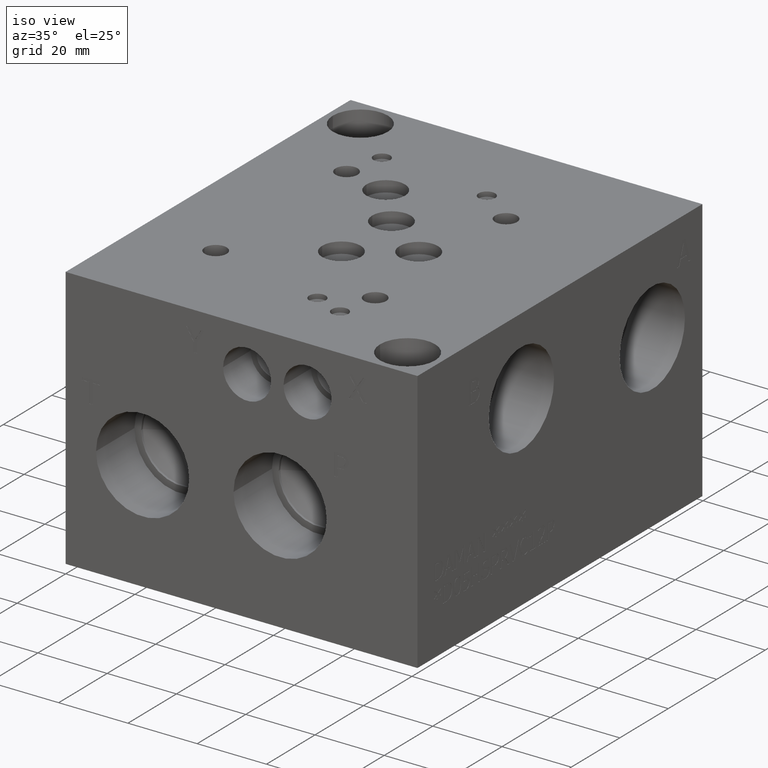
[diagram: clean part render]
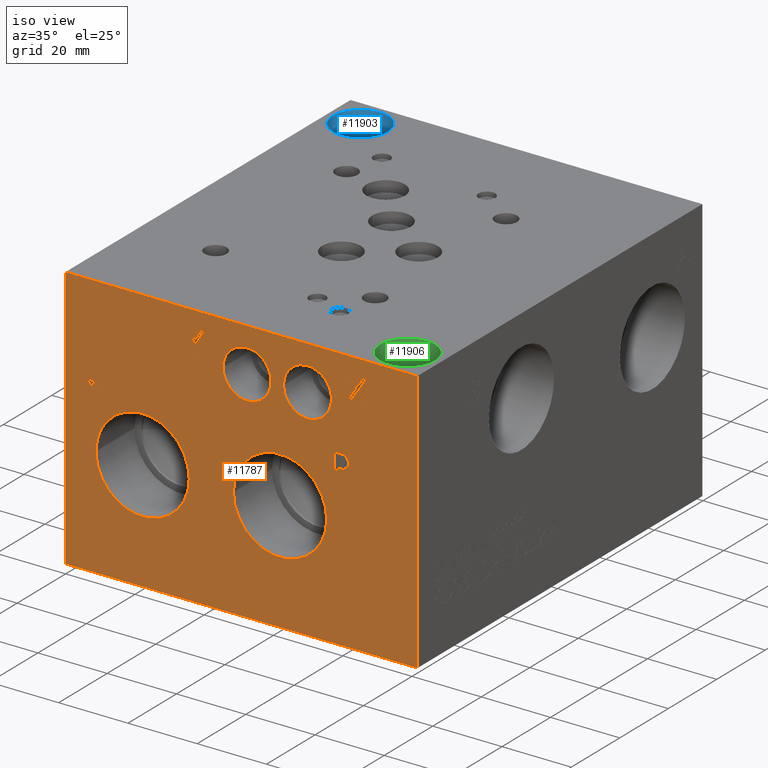
[diagram: same view with three faces highlighted in distinct colors, each labeled with its STEP entity id]
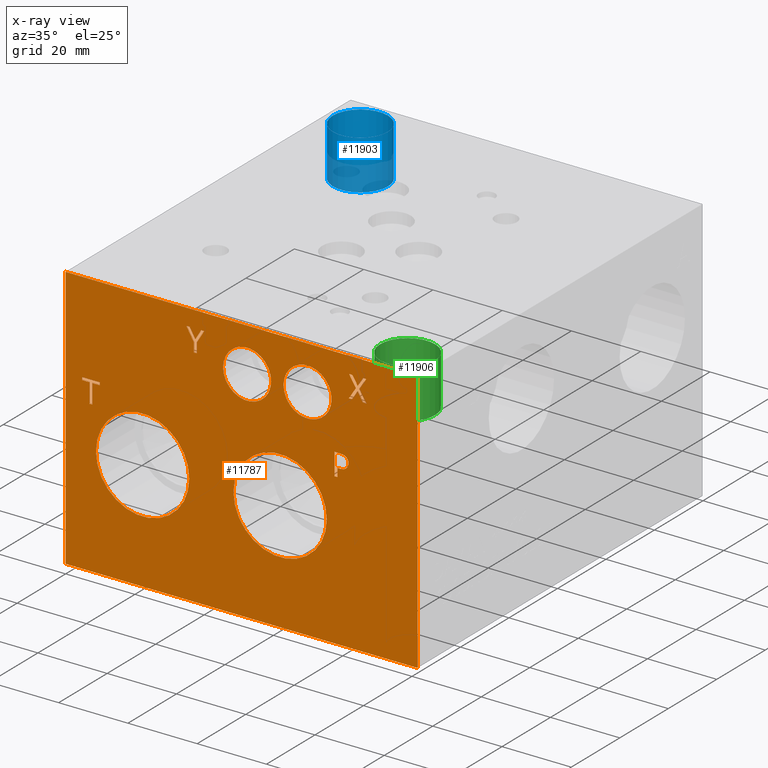
[diagram: x-ray of the same camera — body ghosted, the three highlighted faces saturated]
A machine part, iso view with three faces highlighted in distinct colors.
The next image is the same camera in x-ray (body ghosted, the three faces saturated) — at least one of them is partly hidden behind the body in this view.
Their STEP definitions:

[orange] entity #11787 — the highlighted planar face has unit normal (0, -1, 0).
#101=CIRCLE('',#12277,6.9342);
#102=CIRCLE('',#12278,6.9342);
#103=CIRCLE('',#12279,6.9342);
#104=CIRCLE('',#12280,6.9342);
#105=CIRCLE('',#12281,13.462);
#106=CIRCLE('',#12282,13.462);
#107=CIRCLE('',#12283,13.462);
#108=CIRCLE('',#12284,13.462);
#310=FACE_BOUND('',#1847,.T.);
#311=FACE_BOUND('',#1848,.T.);
#312=FACE_BOUND('',#1849,.T.);
#313=FACE_BOUND('',#1850,.T.);
#314=FACE_BOUND('',#1851,.T.);
#315=FACE_BOUND('',#1852,.T.);
#316=FACE_BOUND('',#1853,.T.);
#317=FACE_BOUND('',#1854,.T.);
#672=PLANE('',#12276);
#1198=FACE_OUTER_BOUND('',#1846,.T.);
#1846=EDGE_LOOP('',(#9910,#9911,#9912,#9913));
#1847=EDGE_LOOP('',(#9914,#9915,#9916,#9917,#9918,#9919,#9920,#9921));
#1848=EDGE_LOOP('',(#9922,#9923));
#1849=EDGE_LOOP('',(#9924,#9925));
#1850=EDGE_LOOP('',(#9926,#9927));
#1851=EDGE_LOOP('',(#9928,#9929));
#1852=EDGE_LOOP('',(#9930,#9931,#9932,#9933,#9934,#9935,#9936,#9937,#9938,
#9939,#9940,#9941));
#1853=EDGE_LOOP('',(#9942,#9943,#9944,#9945,#9946,#9947,#9948,#9949,#9950));
#1854=EDGE_LOOP('',(#9951,#9952,#9953,#9954,#9955,#9956,#9957,#9958,#9959));
#2071=LINE('',#15257,#3255);
#2504=LINE('',#17848,#3688);
#2959=LINE('',#19163,#4143);
#2963=LINE('',#19171,#4147);
#2966=LINE('',#19177,#4150);
#2969=LINE('',#19183,#4153);
#2972=LINE('',#19189,#4156);
#2975=LINE('',#19195,#4159);
#2978=LINE('',#19201,#4162);
#2981=LINE('',#19206,#4165);
#2999=LINE('',#19346,#4183);
#3002=LINE('',#19352,#4186);
#3005=LINE('',#19358,#4189);
#3008=LINE('',#19364,#4192);
#3011=LINE('',#19370,#4195);
#3015=LINE('',#19412,#4199);
#3016=LINE('',#19413,#4200);
#3017=LINE('',#19432,#4201);
#3018=LINE('',#19434,#4202);
#3019=LINE('',#19436,#4203);
#3020=LINE('',#19438,#4204);
#3021=LINE('',#19440,#4205);
#3022=LINE('',#19442,#4206);
#3023=LINE('',#19444,#4207);
#3024=LINE('',#19446,#4208);
#3025=LINE('',#19448,#4209);
#3026=LINE('',#19450,#4210);
#3027=LINE('',#19452,#4211);
#3028=LINE('',#19453,#4212);
#3029=LINE('',#19456,#4213);
#3030=LINE('',#19458,#4214);
#3031=LINE('',#19460,#4215);
#3032=LINE('',#19462,#4216);
#3033=LINE('',#19464,#4217);
#3034=LINE('',#19466,#4218);
#3035=LINE('',#19468,#4219);
#3036=LINE('',#19470,#4220);
#3037=LINE('',#19471,#4221);
#3255=VECTOR('',#12642,10.);
#3688=VECTOR('',#13335,10.);
#4143=VECTOR('',#14130,10.);
#4147=VECTOR('',#14136,10.);
#4150=VECTOR('',#14141,10.);
#4153=VECTOR('',#14146,10.);
#4156=VECTOR('',#14151,10.);
#4159=VECTOR('',#14156,10.);
#4162=VECTOR('',#14161,10.);
#4165=VECTOR('',#14166,10.);
#4183=VECTOR('',#14194,10.);
#4186=VECTOR('',#14199,10.);
#4189=VECTOR('',#14204,10.);
#4192=VECTOR('',#14209,10.);
#4195=VECTOR('',#14214,10.);
#4199=VECTOR('',#14222,10.);
#4200=VECTOR('',#14223,10.);
#4201=VECTOR('',#14240,10.);
#4202=VECTOR('',#14241,10.);
#4203=VECTOR('',#14242,10.);
#4204=VECTOR('',#14243,10.);
#4205=VECTOR('',#14244,10.);
#4206=VECTOR('',#14245,10.);
#4207=VECTOR('',#14246,10.);
#4208=VECTOR('',#14247,10.);
#4209=VECTOR('',#14248,10.);
#4210=VECTOR('',#14249,10.);
#4211=VECTOR('',#14250,10.);
#4212=VECTOR('',#14251,10.);
#4213=VECTOR('',#14252,10.);
#4214=VECTOR('',#14253,10.);
#4215=VECTOR('',#14254,10.);
#4216=VECTOR('',#14255,10.);
#4217=VECTOR('',#14256,10.);
#4218=VECTOR('',#14257,10.);
#4219=VECTOR('',#14258,10.);
#4220=VECTOR('',#14259,10.);
#4221=VECTOR('',#14260,10.);
#4675=B_SPLINE_CURVE_WITH_KNOTS('',2,(#19313,#19314,#19315,#19316),
 .UNSPECIFIED.,.F.,.F.,(3,1,3),(0.,1.,2.),.UNSPECIFIED.);
#4677=B_SPLINE_CURVE_WITH_KNOTS('',2,(#19334,#19335,#19336,#19337),
 .UNSPECIFIED.,.F.,.F.,(3,1,3),(0.,1.,2.),.UNSPECIFIED.);
#4679=B_SPLINE_CURVE_WITH_KNOTS('',2,(#19383,#19384,#19385,#19386),
 .UNSPECIFIED.,.F.,.F.,(3,1,3),(0.,1.,2.),.UNSPECIFIED.);
#4681=B_SPLINE_CURVE_WITH_KNOTS('',2,(#19401,#19402,#19403,#19404),
 .UNSPECIFIED.,.F.,.F.,(3,1,3),(0.,1.,2.),.UNSPECIFIED.);
#4715=VERTEX_POINT('',#15255);
#4716=VERTEX_POINT('',#15256);
#5144=VERTEX_POINT('',#17846);
#5481=VERTEX_POINT('',#19161);
#5482=VERTEX_POINT('',#19162);
#5485=VERTEX_POINT('',#19170);
#5487=VERTEX_POINT('',#19176);
#5489=VERTEX_POINT('',#19182);
#5491=VERTEX_POINT('',#19188);
#5493=VERTEX_POINT('',#19194);
#5495=VERTEX_POINT('',#19200);
#5511=VERTEX_POINT('',#19311);
#5512=VERTEX_POINT('',#19312);
#5515=VERTEX_POINT('',#19333);
#5517=VERTEX_POINT('',#19345);
#5519=VERTEX_POINT('',#19351);
#5521=VERTEX_POINT('',#19357);
#5523=VERTEX_POINT('',#19363);
#5525=VERTEX_POINT('',#19369);
#5527=VERTEX_POINT('',#19382);
#5529=VERTEX_POINT('',#19411);
#5530=VERTEX_POINT('',#19414);
#5531=VERTEX_POINT('',#19415);
#5532=VERTEX_POINT('',#19418);
#5533=VERTEX_POINT('',#19419);
#5534=VERTEX_POINT('',#19422);
#5535=VERTEX_POINT('',#19423);
#5536=VERTEX_POINT('',#19426);
#5537=VERTEX_POINT('',#19427);
#5538=VERTEX_POINT('',#19430);
#5539=VERTEX_POINT('',#19431);
#5540=VERTEX_POINT('',#19433);
#5541=VERTEX_POINT('',#19435);
#5542=VERTEX_POINT('',#19437);
#5543=VERTEX_POINT('',#19439);
#5544=VERTEX_POINT('',#19441);
#5545=VERTEX_POINT('',#19443);
#5546=VERTEX_POINT('',#19445);
#5547=VERTEX_POINT('',#19447);
#5548=VERTEX_POINT('',#19449);
#5549=VERTEX_POINT('',#19451);
#5550=VERTEX_POINT('',#19454);
#5551=VERTEX_POINT('',#19455);
#5552=VERTEX_POINT('',#19457);
#5553=VERTEX_POINT('',#19459);
#5554=VERTEX_POINT('',#19461);
#5555=VERTEX_POINT('',#19463);
#5556=VERTEX_POINT('',#19465);
#5557=VERTEX_POINT('',#19467);
#5558=VERTEX_POINT('',#19469);
#5850=EDGE_CURVE('',#4715,#4716,#2071,.T.);
#6489=EDGE_CURVE('',#4716,#5144,#2504,.T.);
#6992=EDGE_CURVE('',#5481,#5482,#2959,.T.);
#6996=EDGE_CURVE('',#5485,#5481,#2963,.T.);
#6999=EDGE_CURVE('',#5487,#5485,#2966,.T.);
#7002=EDGE_CURVE('',#5489,#5487,#2969,.T.);
#7005=EDGE_CURVE('',#5491,#5489,#2972,.T.);
#7008=EDGE_CURVE('',#5493,#5491,#2975,.T.);
#7011=EDGE_CURVE('',#5495,#5493,#2978,.T.);
#7014=EDGE_CURVE('',#5482,#5495,#2981,.T.);
#7037=EDGE_CURVE('',#5511,#5512,#4675,.T.);
#7041=EDGE_CURVE('',#5515,#5511,#4677,.T.);
#7044=EDGE_CURVE('',#5517,#5515,#2999,.T.);
#7047=EDGE_CURVE('',#5519,#5517,#3002,.T.);
#7050=EDGE_CURVE('',#5521,#5519,#3005,.T.);
#7053=EDGE_CURVE('',#5523,#5521,#3008,.T.);
#7056=EDGE_CURVE('',#5525,#5523,#3011,.T.);
#7059=EDGE_CURVE('',#5527,#5525,#4679,.T.);
#7062=EDGE_CURVE('',#5512,#5527,#4681,.T.);
#7064=EDGE_CURVE('',#5529,#5144,#3015,.T.);
#7065=EDGE_CURVE('',#4715,#5529,#3016,.T.);
#7066=EDGE_CURVE('',#5530,#5531,#101,.T.);
#7067=EDGE_CURVE('',#5531,#5530,#102,.T.);
#7068=EDGE_CURVE('',#5532,#5533,#103,.T.);
#7069=EDGE_CURVE('',#5533,#5532,#104,.T.);
#7070=EDGE_CURVE('',#5534,#5535,#105,.T.);
#7071=EDGE_CURVE('',#5535,#5534,#106,.T.);
#7072=EDGE_CURVE('',#5536,#5537,#107,.T.);
#7073=EDGE_CURVE('',#5537,#5536,#108,.T.);
#7074=EDGE_CURVE('',#5538,#5539,#3017,.T.);
#7075=EDGE_CURVE('',#5539,#5540,#3018,.T.);
#7076=EDGE_CURVE('',#5540,#5541,#3019,.T.);
#7077=EDGE_CURVE('',#5541,#5542,#3020,.T.);
#7078=EDGE_CURVE('',#5542,#5543,#3021,.T.);
#7079=EDGE_CURVE('',#5543,#5544,#3022,.T.);
#7080=EDGE_CURVE('',#5544,#5545,#3023,.T.);
#7081=EDGE_CURVE('',#5545,#5546,#3024,.T.);
#7082=EDGE_CURVE('',#5546,#5547,#3025,.T.);
#7083=EDGE_CURVE('',#5547,#5548,#3026,.T.);
#7084=EDGE_CURVE('',#5548,#5549,#3027,.T.);
#7085=EDGE_CURVE('',#5549,#5538,#3028,.T.);
#7086=EDGE_CURVE('',#5550,#5551,#3029,.T.);
#7087=EDGE_CURVE('',#5551,#5552,#3030,.T.);
#7088=EDGE_CURVE('',#5552,#5553,#3031,.T.);
#7089=EDGE_CURVE('',#5553,#5554,#3032,.T.);
#7090=EDGE_CURVE('',#5554,#5555,#3033,.T.);
#7091=EDGE_CURVE('',#5555,#5556,#3034,.T.);
#7092=EDGE_CURVE('',#5556,#5557,#3035,.T.);
#7093=EDGE_CURVE('',#5557,#5558,#3036,.T.);
#7094=EDGE_CURVE('',#5558,#5550,#3037,.T.);
#9910=ORIENTED_EDGE('',*,*,#5850,.T.);
#9911=ORIENTED_EDGE('',*,*,#6489,.T.);
#9912=ORIENTED_EDGE('',*,*,#7064,.F.);
#9913=ORIENTED_EDGE('',*,*,#7065,.F.);
#9914=ORIENTED_EDGE('',*,*,#6992,.T.);
#9915=ORIENTED_EDGE('',*,*,#7014,.T.);
#9916=ORIENTED_EDGE('',*,*,#7011,.T.);
#9917=ORIENTED_EDGE('',*,*,#7008,.T.);
#9918=ORIENTED_EDGE('',*,*,#7005,.T.);
#9919=ORIENTED_EDGE('',*,*,#7002,.T.);
#9920=ORIENTED_EDGE('',*,*,#6999,.T.);
#9921=ORIENTED_EDGE('',*,*,#6996,.T.);
#9922=ORIENTED_EDGE('',*,*,#7066,.T.);
#9923=ORIENTED_EDGE('',*,*,#7067,.T.);
#9924=ORIENTED_EDGE('',*,*,#7068,.T.);
#9925=ORIENTED_EDGE('',*,*,#7069,.T.);
#9926=ORIENTED_EDGE('',*,*,#7070,.T.);
#9927=ORIENTED_EDGE('',*,*,#7071,.T.);
#9928=ORIENTED_EDGE('',*,*,#7072,.T.);
#9929=ORIENTED_EDGE('',*,*,#7073,.T.);
#9930=ORIENTED_EDGE('',*,*,#7074,.T.);
#9931=ORIENTED_EDGE('',*,*,#7075,.T.);
#9932=ORIENTED_EDGE('',*,*,#7076,.T.);
#9933=ORIENTED_EDGE('',*,*,#7077,.T.);
#9934=ORIENTED_EDGE('',*,*,#7078,.T.);
#9935=ORIENTED_EDGE('',*,*,#7079,.T.);
#9936=ORIENTED_EDGE('',*,*,#7080,.T.);
#9937=ORIENTED_EDGE('',*,*,#7081,.T.);
#9938=ORIENTED_EDGE('',*,*,#7082,.T.);
#9939=ORIENTED_EDGE('',*,*,#7083,.T.);
#9940=ORIENTED_EDGE('',*,*,#7084,.T.);
#9941=ORIENTED_EDGE('',*,*,#7085,.T.);
#9942=ORIENTED_EDGE('',*,*,#7086,.T.);
#9943=ORIENTED_EDGE('',*,*,#7087,.T.);
#9944=ORIENTED_EDGE('',*,*,#7088,.T.);
#9945=ORIENTED_EDGE('',*,*,#7089,.T.);
#9946=ORIENTED_EDGE('',*,*,#7090,.T.);
#9947=ORIENTED_EDGE('',*,*,#7091,.T.);
#9948=ORIENTED_EDGE('',*,*,#7092,.T.);
#9949=ORIENTED_EDGE('',*,*,#7093,.T.);
#9950=ORIENTED_EDGE('',*,*,#7094,.T.);
#9951=ORIENTED_EDGE('',*,*,#7037,.T.);
#9952=ORIENTED_EDGE('',*,*,#7062,.T.);
#9953=ORIENTED_EDGE('',*,*,#7059,.T.);
#9954=ORIENTED_EDGE('',*,*,#7056,.T.);
#9955=ORIENTED_EDGE('',*,*,#7053,.T.);
#9956=ORIENTED_EDGE('',*,*,#7050,.T.);
#9957=ORIENTED_EDGE('',*,*,#7047,.T.);
#9958=ORIENTED_EDGE('',*,*,#7044,.T.);
#9959=ORIENTED_EDGE('',*,*,#7041,.T.);
#11787=ADVANCED_FACE('',(#1198,#310,#311,#312,#313,#314,#315,#316,#317),
#672,.T.);
#12276=AXIS2_PLACEMENT_3D('',#19410,#14220,#14221);
#12277=AXIS2_PLACEMENT_3D('',#19416,#14224,#14225);
#12278=AXIS2_PLACEMENT_3D('',#19417,#14226,#14227);
#12279=AXIS2_PLACEMENT_3D('',#19420,#14228,#14229);
#12280=AXIS2_PLACEMENT_3D('',#19421,#14230,#14231);
#12281=AXIS2_PLACEMENT_3D('',#19424,#14232,#14233);
#12282=AXIS2_PLACEMENT_3D('',#19425,#14234,#14235);
#12283=AXIS2_PLACEMENT_3D('',#19428,#14236,#14237);
#12284=AXIS2_PLACEMENT_3D('',#19429,#14238,#14239);
#12642=DIRECTION('',(1.,0.,0.));
#13335=DIRECTION('',(0.,0.,1.));
#14130=DIRECTION('',(-1.,0.,0.));
#14136=DIRECTION('',(0.,0.,-1.));
#14141=DIRECTION('',(-1.,0.,0.));
#14146=DIRECTION('',(0.,0.,-1.));
#14151=DIRECTION('',(1.,0.,0.));
#14156=DIRECTION('',(0.,0.,1.));
#14161=DIRECTION('',(-1.,0.,0.));
#14166=DIRECTION('',(0.,0.,1.));
#14194=DIRECTION('',(1.,0.,0.));
#14199=DIRECTION('',(0.,0.,1.));
#14204=DIRECTION('',(-1.,0.,0.));
#14209=DIRECTION('',(0.,0.,-1.));
#14214=DIRECTION('',(-1.,0.,0.));
#14220=DIRECTION('center_axis',(0.,-1.,0.));
#14221=DIRECTION('ref_axis',(1.,0.,0.));
#14222=DIRECTION('',(1.,0.,0.));
#14223=DIRECTION('',(0.,0.,1.));
#14224=DIRECTION('center_axis',(0.,1.,0.));
#14225=DIRECTION('ref_axis',(1.,0.,0.));
#14226=DIRECTION('center_axis',(0.,1.,0.));
#14227=DIRECTION('ref_axis',(1.,0.,0.));
#14228=DIRECTION('center_axis',(0.,1.,0.));
#14229=DIRECTION('ref_axis',(1.,0.,0.));
#14230=DIRECTION('center_axis',(0.,1.,0.));
#14231=DIRECTION('ref_axis',(1.,0.,0.));
#14232=DIRECTION('center_axis',(0.,1.,0.));
#14233=DIRECTION('ref_axis',(1.,0.,0.));
#14234=DIRECTION('center_axis',(0.,1.,0.));
#14235=DIRECTION('ref_axis',(1.,0.,0.));
#14236=DIRECTION('center_axis',(0.,1.,0.));
#14237=DIRECTION('ref_axis',(1.,0.,0.));
#14238=DIRECTION('center_axis',(0.,1.,0.));
#14239=DIRECTION('ref_axis',(1.,0.,0.));
#14240=DIRECTION('',(0.524855865490427,0.,-0.851191118645099));
#14241=DIRECTION('',(-1.,0.,0.));
#14242=DIRECTION('',(-0.520607424264657,0.,0.853796175794035));
#14243=DIRECTION('',(-0.528135980540068,0.,-0.849159811848736));
#14244=DIRECTION('',(-1.,0.,0.));
#14245=DIRECTION('',(0.536610413405566,0.,0.843830115736993));
#14246=DIRECTION('',(-0.526021863962621,0.,0.850471045146917));
#14247=DIRECTION('',(1.,0.,0.));
#14248=DIRECTION('',(0.519946946895742,0.,-0.85419855561444));
#14249=DIRECTION('',(0.527625517089337,0.,0.849477082513831));
#14250=DIRECTION('',(1.,0.,0.));
#14251=DIRECTION('',(-0.53597672021737,0.,-0.844232761378656));
#14252=DIRECTION('',(1.,0.,0.));
#14253=DIRECTION('',(-0.518329263750967,0.,-0.855181135397279));
#14254=DIRECTION('',(0.,0.,-1.));
#14255=DIRECTION('',(-1.,0.,0.));
#14256=DIRECTION('',(0.,0.,1.));
#14257=DIRECTION('',(-0.509099449897538,0.,0.860707703064184));
#14258=DIRECTION('',(1.,0.,0.));
#14259=DIRECTION('',(0.505352400516577,0.,-0.862913061259437));
#14260=DIRECTION('',(0.512401080946013,0.,0.858746256029893));
#15255=CARTESIAN_POINT('',(0.,0.,0.));
#15256=CARTESIAN_POINT('',(101.6,0.,0.));
#15257=CARTESIAN_POINT('',(0.,0.,0.));
#17846=CARTESIAN_POINT('',(101.6,0.,76.2));
#17848=CARTESIAN_POINT('',(101.6,0.,0.));
#19161=CARTESIAN_POINT('',(7.73166527145299,0.,43.65625));
#19162=CARTESIAN_POINT('',(6.88774307991349,0.,43.65625));
#19163=CARTESIAN_POINT('',(3.8658326357265,0.,43.65625));
#19170=CARTESIAN_POINT('',(7.73166527145299,0.,49.2549533194816));
#19171=CARTESIAN_POINT('',(7.73166527145299,0.,24.6274766597408));
#19176=CARTESIAN_POINT('',(9.86205421838807,0.,49.2549533194816));
#19177=CARTESIAN_POINT('',(4.93102710919403,0.,49.2549533194816));
#19182=CARTESIAN_POINT('',(9.86205421838807,0.,50.0062499046326));
#19183=CARTESIAN_POINT('',(9.86205421838807,0.,25.0031249523163));
#19188=CARTESIAN_POINT('',(4.75735413297842,0.,50.0062499046326));
#19189=CARTESIAN_POINT('',(2.37867706648921,0.,50.0062499046326));
#19194=CARTESIAN_POINT('',(4.75735413297842,0.,49.2549533194816));
#19195=CARTESIAN_POINT('',(4.75735413297842,0.,24.6274766597408));
#19200=CARTESIAN_POINT('',(6.88774307991349,0.,49.2549533194816));
#19201=CARTESIAN_POINT('',(3.44387153995675,0.,49.2549533194816));
#19206=CARTESIAN_POINT('',(6.88774307991349,0.,21.828125));
#19311=CARTESIAN_POINT('',(80.8943172023594,0.,49.6100181439707));
#19312=CARTESIAN_POINT('',(81.650759654532,0.,48.091987372604));
#19313=CARTESIAN_POINT('Ctrl Pts',(80.8943172023594,0.,49.6100181439707));
#19314=CARTESIAN_POINT('Ctrl Pts',(81.2493820268486,0.,49.3681623939564));
#19315=CARTESIAN_POINT('Ctrl Pts',(81.650759654532,0.,48.6220116758269));
#19316=CARTESIAN_POINT('Ctrl Pts',(81.650759654532,0.,48.091987372604));
#19333=CARTESIAN_POINT('',(79.2322021543883,0.,50.0062499046326));
#19334=CARTESIAN_POINT('Ctrl Pts',(79.2322021543883,0.,50.0062499046326));
#19335=CARTESIAN_POINT('Ctrl Pts',(79.7982475267624,0.,50.0062499046326));
#19336=CARTESIAN_POINT('Ctrl Pts',(80.590711048086,0.,49.8209986918556));
#19337=CARTESIAN_POINT('Ctrl Pts',(80.8943172023594,0.,49.6100181439707));
#19345=CARTESIAN_POINT('',(77.6369833776978,0.,50.0062499046326));
#19346=CARTESIAN_POINT('',(38.8184916888489,0.,50.0062499046326));
#19351=CARTESIAN_POINT('',(77.6369833776978,0.,43.65625));
#19352=CARTESIAN_POINT('',(77.6369833776978,0.,21.828125));
#19357=CARTESIAN_POINT('',(78.4809055692373,0.,43.65625));
#19358=CARTESIAN_POINT('',(39.2404527846186,0.,43.65625));
#19363=CARTESIAN_POINT('',(78.4809055692373,0.,46.0233488299279));
#19364=CARTESIAN_POINT('',(78.4809055692373,0.,23.0116744149639));
#19369=CARTESIAN_POINT('',(79.1961810852372,0.,46.0233488299279));
#19370=CARTESIAN_POINT('',(39.5980905426186,0.,46.0233488299279));
#19382=CARTESIAN_POINT('',(81.0950060162011,0.,46.6820198086904));
#19383=CARTESIAN_POINT('Ctrl Pts',(81.0950060162011,0.,46.6820198086904));
#19384=CARTESIAN_POINT('Ctrl Pts',(80.7656705268198,0.,46.3578301863307));
#19385=CARTESIAN_POINT('Ctrl Pts',(79.8754355320861,0.,46.0233488299279));
#19386=CARTESIAN_POINT('Ctrl Pts',(79.1961810852372,0.,46.0233488299279));
#19401=CARTESIAN_POINT('Ctrl Pts',(81.650759654532,0.,48.091987372604));
#19402=CARTESIAN_POINT('Ctrl Pts',(81.650759654532,0.,47.6803180108774));
#19403=CARTESIAN_POINT('Ctrl Pts',(81.3574452343018,0.,46.9393131597695));
#19404=CARTESIAN_POINT('Ctrl Pts',(81.0950060162011,0.,46.6820198086904));
#19410=CARTESIAN_POINT('Origin',(0.,0.,0.));
#19411=CARTESIAN_POINT('',(0.,0.,76.2));
#19412=CARTESIAN_POINT('',(0.,0.,76.2));
#19413=CARTESIAN_POINT('',(0.,0.,0.));
#19414=CARTESIAN_POINT('',(59.3344,0.,63.5));
#19415=CARTESIAN_POINT('',(45.466,0.,63.5));
#19416=CARTESIAN_POINT('Origin',(52.4002,0.,63.5));
#19417=CARTESIAN_POINT('Origin',(52.4002,0.,63.5));
#19418=CARTESIAN_POINT('',(76.7842,0.,63.5));
#19419=CARTESIAN_POINT('',(62.9158,0.,63.5));
#19420=CARTESIAN_POINT('Origin',(69.85,0.,63.5));
#19421=CARTESIAN_POINT('Origin',(69.85,0.,63.5));
#19422=CARTESIAN_POINT('',(35.687,0.,31.75));
#19423=CARTESIAN_POINT('',(8.763,1.11022302462516E-15,31.75));
#19424=CARTESIAN_POINT('Origin',(22.225,0.,31.75));
#19425=CARTESIAN_POINT('Origin',(22.225,0.,31.75));
#19426=CARTESIAN_POINT('',(75.3872,0.,31.75));
#19427=CARTESIAN_POINT('',(48.4632,1.11022302462516E-15,31.75));
#19428=CARTESIAN_POINT('Origin',(61.9252,0.,31.75));
#19429=CARTESIAN_POINT('Origin',(61.9252,0.,31.75));
#19430=CARTESIAN_POINT('',(84.8026032767767,0.,68.3088127555105));
#19431=CARTESIAN_POINT('',(86.7889079471075,0.,65.0875));
#19432=CARTESIAN_POINT('',(88.3807322991369,0.,62.5059402995586));
#19433=CARTESIAN_POINT('',(85.82148494705,0.,65.0875));
#19434=CARTESIAN_POINT('',(43.3944539735538,0.,65.0875));
#19435=CARTESIAN_POINT('',(84.2777248405753,0.,67.6192665746185));
#19436=CARTESIAN_POINT('',(88.656753682543,0.,60.4376592737916));
#19437=CARTESIAN_POINT('',(82.7030895319711,0.,65.0875));
#19438=CARTESIAN_POINT('',(57.3613637078466,0.,24.341980047486));
#19439=CARTESIAN_POINT('',(81.7922710691511,0.,65.0875));
#19440=CARTESIAN_POINT('',(41.3515447659856,0.,65.0875));
#19441=CARTESIAN_POINT('',(83.8145968086329,0.,68.2676458193379));
#19442=CARTESIAN_POINT('',(55.2801275147967,0.,23.3966483038399));
#19443=CARTESIAN_POINT('',(81.8540214734101,0.,71.4374999046326));
#19444=CARTESIAN_POINT('',(87.4892134488461,0.,62.3265333511717));
#19445=CARTESIAN_POINT('',(82.8214444734675,0.,71.4374999046326));
#19446=CARTESIAN_POINT('',(40.927010736705,0.,71.4374999046326));
#19447=CARTESIAN_POINT('',(84.3343293778127,0.,68.9520461332083));
#19448=CARTESIAN_POINT('',(87.4903216131173,0.,63.7672017466365));
#19449=CARTESIAN_POINT('',(85.8780894842874,0.,71.4374999046326));
#19450=CARTESIAN_POINT('',(57.1431148163754,0.,25.1741906892942));
#19451=CARTESIAN_POINT('',(86.7889079471075,0.,71.4374999046326));
#19452=CARTESIAN_POINT('',(42.9390447421437,0.,71.4374999046326));
#19453=CARTESIAN_POINT('',(58.160592570844,0.,26.3441948560103));
#19454=CARTESIAN_POINT('',(39.1188816225896,0.,71.4374999046326));
#19455=CARTESIAN_POINT('',(40.0142624843449,0.,71.4374999046326));
#19456=CARTESIAN_POINT('',(19.5594408112948,0.,71.4374999046326));
#19457=CARTESIAN_POINT('',(37.8684359363451,0.,67.8971433937839));
#19458=CARTESIAN_POINT('',(18.8061557733307,0.,36.4466667699137));
#19459=CARTESIAN_POINT('',(37.8684359363451,0.,65.0875));
#19460=CARTESIAN_POINT('',(37.8684359363451,0.,33.948571696892));
#19461=CARTESIAN_POINT('',(37.0245137448056,0.,65.0875));
#19462=CARTESIAN_POINT('',(18.9342179681725,0.,65.0875));
#19463=CARTESIAN_POINT('',(37.0245137448056,0.,67.8096636544171));
#19464=CARTESIAN_POINT('',(37.0245137448056,0.,32.54375));
#19465=CARTESIAN_POINT('',(34.8786871968058,0.,71.4374999046326));
#19466=CARTESIAN_POINT('',(47.0830818316791,0.,50.8041708456741));
#19467=CARTESIAN_POINT('',(35.8152349947337,0.,71.4374999046326));
#19468=CARTESIAN_POINT('',(17.4393435984029,0.,71.4374999046326));
#19469=CARTESIAN_POINT('',(37.4516207075969,0.,68.6432941119134));
#19470=CARTESIAN_POINT('',(46.8180294212793,0.,52.6497094215689));
#19471=CARTESIAN_POINT('',(17.4327707668756,0.,35.0931844890378));

[blue] entity #11903 — the highlighted cylindrical surface (bore or boss wall) has radius 7.9375 mm, axis along (0, 0, 1).
#48=CYLINDRICAL_SURFACE('',#12509,7.9375);
#215=CIRCLE('',#12506,7.9375);
#216=CIRCLE('',#12507,7.9375);
#218=CIRCLE('',#12510,7.9375);
#219=CIRCLE('',#12511,7.9375);
#1314=FACE_OUTER_BOUND('',#1983,.T.);
#1983=EDGE_LOOP('',(#10489,#10490,#10491,#10492,#10493,#10494));
#3199=LINE('',#20054,#4383);
#4383=VECTOR('',#14876,7.9375);
#5748=VERTEX_POINT('',#20043);
#5749=VERTEX_POINT('',#20044);
#5751=VERTEX_POINT('',#20050);
#5752=VERTEX_POINT('',#20051);
#7362=EDGE_CURVE('',#5748,#5749,#215,.T.);
#7363=EDGE_CURVE('',#5749,#5748,#216,.T.);
#7365=EDGE_CURVE('',#5751,#5752,#218,.T.);
#7366=EDGE_CURVE('',#5752,#5751,#219,.T.);
#7367=EDGE_CURVE('',#5752,#5749,#3199,.T.);
#10489=ORIENTED_EDGE('',*,*,#7365,.F.);
#10490=ORIENTED_EDGE('',*,*,#7366,.F.);
#10491=ORIENTED_EDGE('',*,*,#7367,.T.);
#10492=ORIENTED_EDGE('',*,*,#7362,.F.);
#10493=ORIENTED_EDGE('',*,*,#7363,.F.);
#10494=ORIENTED_EDGE('',*,*,#7367,.F.);
#11903=ADVANCED_FACE('',(#1314),#48,.F.);
#12506=AXIS2_PLACEMENT_3D('',#20045,#14864,#14865);
#12507=AXIS2_PLACEMENT_3D('',#20046,#14866,#14867);
#12509=AXIS2_PLACEMENT_3D('',#20049,#14870,#14871);
#12510=AXIS2_PLACEMENT_3D('',#20052,#14872,#14873);
#12511=AXIS2_PLACEMENT_3D('',#20053,#14874,#14875);
#14864=DIRECTION('center_axis',(0.,0.,1.));
#14865=DIRECTION('ref_axis',(1.,0.,0.));
#14866=DIRECTION('center_axis',(0.,0.,1.));
#14867=DIRECTION('ref_axis',(1.,0.,0.));
#14870=DIRECTION('center_axis',(0.,0.,1.));
#14871=DIRECTION('ref_axis',(1.,0.,0.));
#14872=DIRECTION('center_axis',(0.,0.,-1.));
#14873=DIRECTION('ref_axis',(1.,0.,0.));
#14874=DIRECTION('center_axis',(0.,0.,-1.));
#14875=DIRECTION('ref_axis',(1.,0.,0.));
#14876=DIRECTION('',(0.,0.,-1.));
#20043=CARTESIAN_POINT('',(17.4625,107.95,61.9252));
#20044=CARTESIAN_POINT('',(1.5875,107.95,61.9252));
#20045=CARTESIAN_POINT('Origin',(9.525,107.95,61.9252));
#20046=CARTESIAN_POINT('Origin',(9.525,107.95,61.9252));
#20049=CARTESIAN_POINT('Origin',(9.525,107.95,69.0626));
#20050=CARTESIAN_POINT('',(17.4625,107.95,76.2));
#20051=CARTESIAN_POINT('',(1.5875,107.95,76.2));
#20052=CARTESIAN_POINT('Origin',(9.525,107.95,76.2));
#20053=CARTESIAN_POINT('Origin',(9.525,107.95,76.2));
#20054=CARTESIAN_POINT('',(1.5875,107.95,69.0626));

[green] entity #11906 — the highlighted cylindrical surface (bore or boss wall) has radius 7.9375 mm, axis along (0, 0, 1).
#50=CYLINDRICAL_SURFACE('',#12517,7.9375);
#220=CIRCLE('',#12514,7.9375);
#221=CIRCLE('',#12515,7.9375);
#223=CIRCLE('',#12518,7.9375);
#224=CIRCLE('',#12519,7.9375);
#1317=FACE_OUTER_BOUND('',#1987,.T.);
#1987=EDGE_LOOP('',(#10502,#10503,#10504,#10505,#10506,#10507));
#3201=LINE('',#20069,#4385);
#4385=VECTOR('',#14894,7.9375);
#5753=VERTEX_POINT('',#20058);
#5754=VERTEX_POINT('',#20059);
#5756=VERTEX_POINT('',#20065);
#5757=VERTEX_POINT('',#20066);
#7369=EDGE_CURVE('',#5753,#5754,#220,.T.);
#7370=EDGE_CURVE('',#5754,#5753,#221,.T.);
#7372=EDGE_CURVE('',#5756,#5757,#223,.T.);
#7373=EDGE_CURVE('',#5757,#5756,#224,.T.);
#7374=EDGE_CURVE('',#5757,#5754,#3201,.T.);
#10502=ORIENTED_EDGE('',*,*,#7372,.F.);
#10503=ORIENTED_EDGE('',*,*,#7373,.F.);
#10504=ORIENTED_EDGE('',*,*,#7374,.T.);
#10505=ORIENTED_EDGE('',*,*,#7369,.F.);
#10506=ORIENTED_EDGE('',*,*,#7370,.F.);
#10507=ORIENTED_EDGE('',*,*,#7374,.F.);
#11906=ADVANCED_FACE('',(#1317),#50,.F.);
#12514=AXIS2_PLACEMENT_3D('',#20060,#14882,#14883);
#12515=AXIS2_PLACEMENT_3D('',#20061,#14884,#14885);
#12517=AXIS2_PLACEMENT_3D('',#20064,#14888,#14889);
#12518=AXIS2_PLACEMENT_3D('',#20067,#14890,#14891);
#12519=AXIS2_PLACEMENT_3D('',#20068,#14892,#14893);
#14882=DIRECTION('center_axis',(0.,0.,1.));
#14883=DIRECTION('ref_axis',(1.,0.,0.));
#14884=DIRECTION('center_axis',(0.,0.,1.));
#14885=DIRECTION('ref_axis',(1.,0.,0.));
#14888=DIRECTION('center_axis',(0.,0.,1.));
#14889=DIRECTION('ref_axis',(1.,0.,0.));
#14890=DIRECTION('center_axis',(0.,0.,-1.));
#14891=DIRECTION('ref_axis',(1.,0.,0.));
#14892=DIRECTION('center_axis',(0.,0.,-1.));
#14893=DIRECTION('ref_axis',(1.,0.,0.));
#14894=DIRECTION('',(0.,0.,-1.));
#20058=CARTESIAN_POINT('',(100.0125,9.525,61.9252));
#20059=CARTESIAN_POINT('',(84.1375,9.525,61.9252));
#20060=CARTESIAN_POINT('Origin',(92.075,9.525,61.9252));
#20061=CARTESIAN_POINT('Origin',(92.075,9.525,61.9252));
#20064=CARTESIAN_POINT('Origin',(92.075,9.525,69.0626));
#20065=CARTESIAN_POINT('',(100.0125,9.525,76.2));
#20066=CARTESIAN_POINT('',(84.1375,9.525,76.2));
#20067=CARTESIAN_POINT('Origin',(92.075,9.525,76.2));
#20068=CARTESIAN_POINT('Origin',(92.075,9.525,76.2));
#20069=CARTESIAN_POINT('',(84.1375,9.525,69.0626));